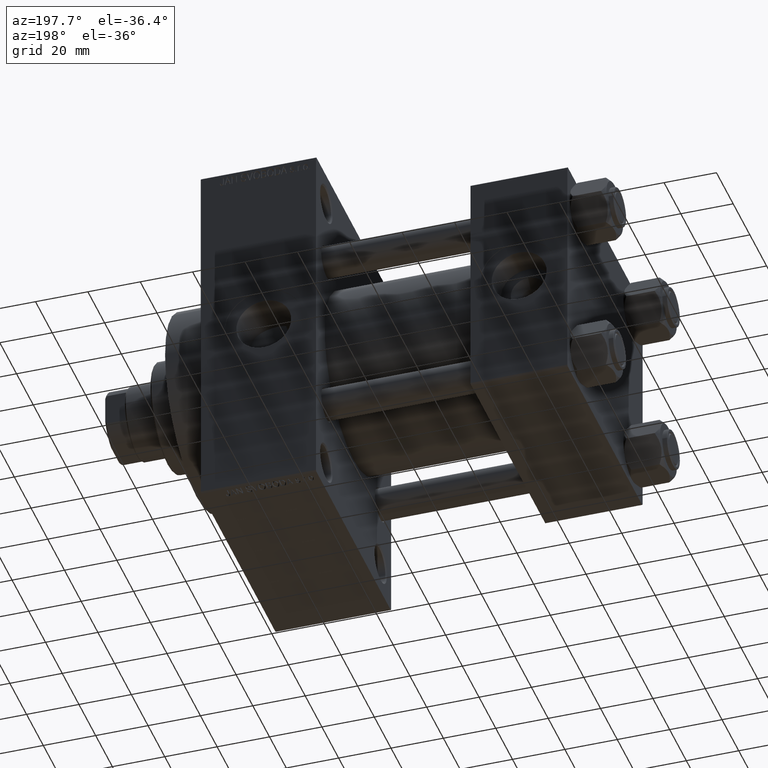
[diagram: clean part render]
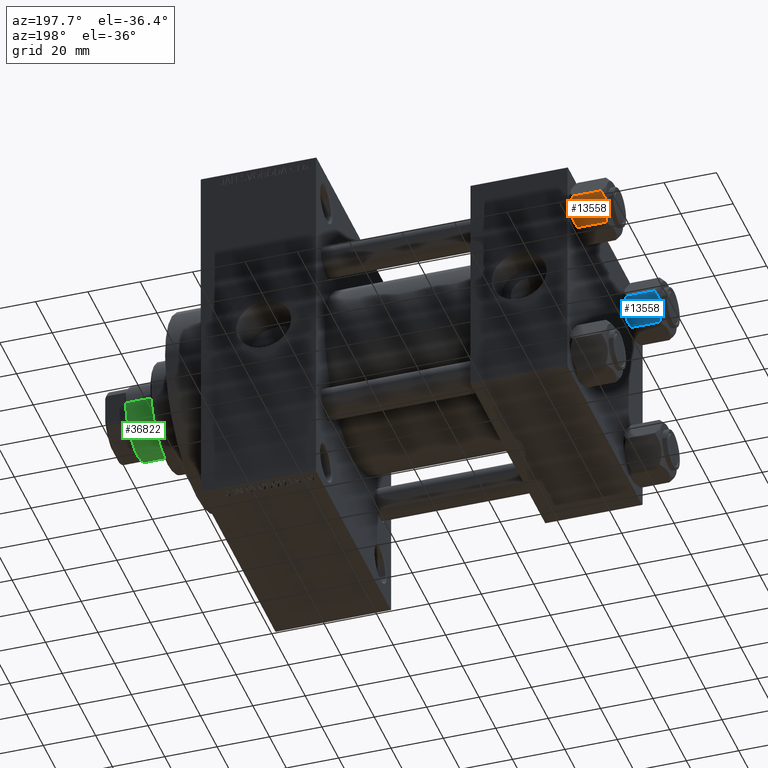
[diagram: same view with three faces highlighted in distinct colors, each labeled with its STEP entity id]
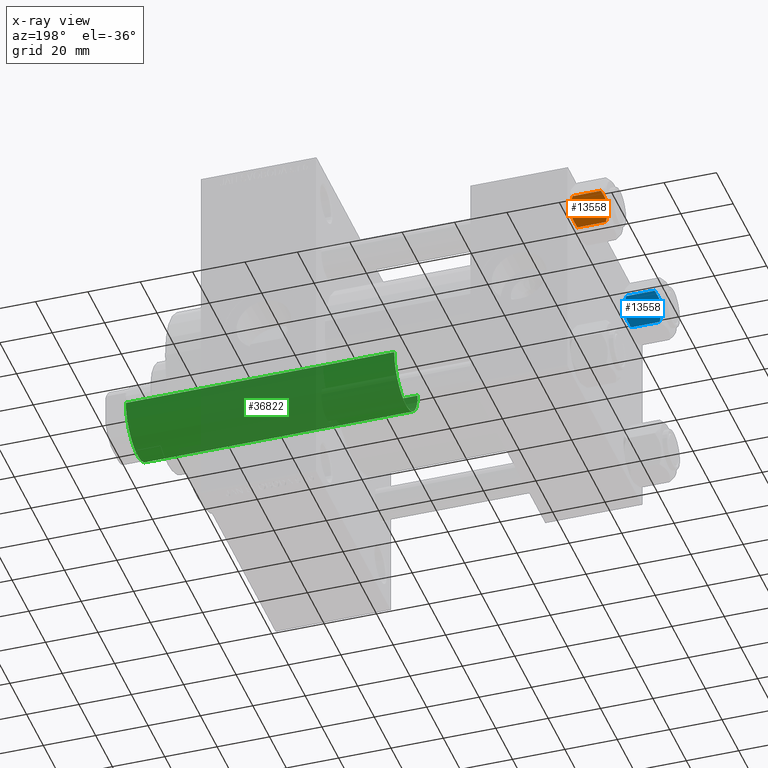
[diagram: x-ray of the same camera — body ghosted, the three highlighted faces saturated]
A machine part, auxiliary view with three faces highlighted in distinct colors.
The next image is the same camera in x-ray (body ghosted, the three faces saturated) — at least one of them is partly hidden behind the body in this view.
Their STEP definitions:

[orange] entity #13558 — the highlighted planar face has unit normal (-0, -0.866, 0.5).
#719 = CARTESIAN_POINT ( 'NONE',  ( 11.16498164529022574, 0.7881149087337292469, -12.89823354668504862 ) ) ;
#954 = EDGE_CURVE ( 'NONE', #45559, #23293, #44878, .T. ) ;
#1527 = CARTESIAN_POINT ( 'NONE',  ( 8.715000000000005187, 5.031607595987590109, -14.00000000000000000 ) ) ;
#2225 = VERTEX_POINT ( 'NONE', #3166 ) ;
#2510 = CARTESIAN_POINT ( 'NONE',  ( 5.810000000000000497, 10.06321519197518022, -12.44321519197518455 ) ) ;
#3166 = CARTESIAN_POINT ( 'NONE',  ( 11.62000000000000099, -1.924525737834042474E-15, -1.556784808024813893 ) ) ;
#4525 = VERTEX_POINT ( 'NONE', #25336 ) ;
#4587 = FACE_OUTER_BOUND ( 'NONE', #16738, .T. ) ;
#4829 = PLANE ( 'NONE',  #34046 ) ;
#4891 = ORIENTED_EDGE ( 'NONE', *, *, #45071, .F. ) ;
#5285 = CARTESIAN_POINT ( 'NONE',  ( 6.731401448974991375, 8.467301068182917945, -13.28585617404753627 ) ) ;
#5798 = DIRECTION ( 'NONE',  ( 0.4999999999999998335, -0.8660254037844387076, 0.000000000000000000 ) ) ;
#6338 = ORIENTED_EDGE ( 'NONE', *, *, #27843, .T. ) ;
#6592 = CARTESIAN_POINT ( 'NONE',  ( 10.69859855102501278, 1.595914123792262718, -0.7141438259524649501 ) ) ;
#8390 = EDGE_CURVE ( 'NONE', #41371, #4525, #48030, .T. ) ;
#8392 = CARTESIAN_POINT ( 'NONE',  ( 5.810000000000000497, 10.06321519197518022, -1.556784808024815892 ) ) ;
#8455 = CARTESIAN_POINT ( 'NONE',  ( 10.69662495661650503, 1.599332489581333672, -13.28854452935655139 ) ) ;
#8686 = ORIENTED_EDGE ( 'NONE', *, *, #8390, .F. ) ;
#9028 = CARTESIAN_POINT ( 'NONE',  ( 7.455303369716807182, 7.213466161761384221, -13.69973261901325934 ) ) ;
#9805 = VERTEX_POINT ( 'NONE', #43856 ) ;
#9998 = CARTESIAN_POINT ( 'NONE',  ( 6.265545725125286403, 9.274186850887383926, -12.89876091710046957 ) ) ;
#10338 = CARTESIAN_POINT ( 'NONE',  ( 11.16445427487472131, 0.7890283410877956261, -1.101239082899531985 ) ) ;
#10957 = CARTESIAN_POINT ( 'NONE',  ( 6.733375043383499126, 8.463882702393844326, -0.7114554706434494946 ) ) ;
#12513 = ORIENTED_EDGE ( 'NONE', *, *, #954, .F. ) ;
#13360 = CARTESIAN_POINT ( 'NONE',  ( 11.62000000000000099, -1.924525737834042474E-15, -1.556784808024813893 ) ) ;
#13558 = ADVANCED_FACE ( 'NONE', ( #4587 ), #4829, .F. ) ;
#13613 = LINE ( 'NONE', #39657, #30096 ) ;
#16216 = CARTESIAN_POINT ( 'NONE',  ( 8.715000000000005187, 5.031607595987590109, -14.00000000000000000 ) ) ;
#16362 = EDGE_CURVE ( 'NONE', #9805, #41371, #29502, .T. ) ;
#16738 = EDGE_LOOP ( 'NONE', ( #17657, #6338, #12513, #42905, #4891, #8686 ) ) ;
#17279 = CARTESIAN_POINT ( 'NONE',  ( 8.202333004087901003, 5.919572880271053883, -13.96005881939309567 ) ) ;
#17657 = ORIENTED_EDGE ( 'NONE', *, *, #16362, .F. ) ;
#17764 = LINE ( 'NONE', #36270, #34850 ) ;
#18104 = CARTESIAN_POINT ( 'NONE',  ( 8.715000000000005187, 5.031607595987590109, 0.000000000000000000 ) ) ;
#19717 = CARTESIAN_POINT ( 'NONE',  ( 9.220295946303432189, 4.156409344131451356, -14.00000000000000178 ) ) ;
#20080 = DIRECTION ( 'NONE',  ( -0.8660254037844387076, -0.4999999999999998335, 0.000000000000000000 ) ) ;
#21252 = CARTESIAN_POINT ( 'NONE',  ( 7.700834831386345058, 6.788193195293094284, -13.80960203119265906 ) ) ;
#21828 = CARTESIAN_POINT ( 'NONE',  ( 9.227666995912102266, 4.143642311704121894, -0.03994118060690670519 ) ) ;
#23293 = VERTEX_POINT ( 'NONE', #8392 ) ;
#25336 = CARTESIAN_POINT ( 'NONE',  ( 11.62000000000000099, -1.689012838886770227E-15, -12.44321519197518633 ) ) ;
#25714 = EDGE_CURVE ( 'NONE', #2225, #45559, #33725, .T. ) ;
#26193 = CARTESIAN_POINT ( 'NONE',  ( 6.265018354709773973, 9.275100283241448196, -1.101766453314953154 ) ) ;
#27199 = CARTESIAN_POINT ( 'NONE',  ( 11.62000000000000099, -1.689012838886770227E-15, -12.44321519197518633 ) ) ;
#27843 = EDGE_CURVE ( 'NONE', #9805, #23293, #13613, .T. ) ;
#28593 = CARTESIAN_POINT ( 'NONE',  ( 9.974696630283190757, 2.849749030213792000, -0.3002673809867367205 ) ) ;
#29502 = B_SPLINE_CURVE_WITH_KNOTS ( 'NONE', 3,
 ( #2510, #9998, #5285, #9028, #21252, #17279, #48037, #1527 ),
 .UNSPECIFIED., .F., .F.,
 ( 4, 2, 2, 4 ),
 ( 2.544312114902182352E-07, 0.003011550106433542526, 0.004517197944044567919, 0.006022845781655592444 ),
 .UNSPECIFIED. ) ;
#29693 = CARTESIAN_POINT ( 'NONE',  ( 8.715000000000005187, 5.031607595987590109, 0.000000000000000000 ) ) ;
#29935 = CARTESIAN_POINT ( 'NONE',  ( 8.209704053696576409, 5.906805847843727086, 3.430483436379916373E-15 ) ) ;
#30096 = VECTOR ( 'NONE', #43894, 1000.000000000000000 ) ;
#33443 = CARTESIAN_POINT ( 'NONE',  ( 8.715000000000005187, 5.031607595987590109, 0.000000000000000000 ) ) ;
#33725 = B_SPLINE_CURVE_WITH_KNOTS ( 'NONE', 3,
 ( #13360, #10338, #6592, #28593, #39882, #21828, #43876, #18104 ),
 .UNSPECIFIED., .F., .F.,
 ( 4, 2, 2, 4 ),
 ( 2.544312114903581015E-07, 0.003011550106433540791, 0.004517197944044564449, 0.006022845781655588107 ),
 .UNSPECIFIED. ) ;
#34046 = AXIS2_PLACEMENT_3D ( 'NONE', #43338, #20080, #5798 ) ;
#34850 = VECTOR ( 'NONE', #40041, 1000.000000000000000 ) ;
#36270 = CARTESIAN_POINT ( 'NONE',  ( 11.62000000000000099, -1.813166800014576593E-15, -14.00000000000000000 ) ) ;
#38974 = CARTESIAN_POINT ( 'NONE',  ( 9.716999946243698005, 3.296092779912226156, -13.84547602999602134 ) ) ;
#39657 = CARTESIAN_POINT ( 'NONE',  ( 5.810000000000000497, 10.06321519197518022, -14.00000000000000000 ) ) ;
#39882 = CARTESIAN_POINT ( 'NONE',  ( 9.729165168613654657, 3.275021996682081493, -0.1903979688073405840 ) ) ;
#40041 = DIRECTION ( 'NONE',  ( -0.000000000000000000, -0.000000000000000000, 1.000000000000000000 ) ) ;
#40757 = CARTESIAN_POINT ( 'NONE',  ( 8.715000000000005187, 5.031607595987590109, -14.00000000000000000 ) ) ;
#41371 = VERTEX_POINT ( 'NONE', #40757 ) ;
#42460 = CARTESIAN_POINT ( 'NONE',  ( 5.810000000000000497, 10.06321519197518022, -1.556784808024815892 ) ) ;
#42905 = ORIENTED_EDGE ( 'NONE', *, *, #25714, .F. ) ;
#43338 = CARTESIAN_POINT ( 'NONE',  ( 5.810000000000000497, 10.06321519197518022, -14.00000000000000000 ) ) ;
#43856 = CARTESIAN_POINT ( 'NONE',  ( 5.810000000000000497, 10.06321519197518022, -12.44321519197518455 ) ) ;
#43876 = CARTESIAN_POINT ( 'NONE',  ( 8.969430103550381617, 4.590921729663312689, 3.523657060577888622E-15 ) ) ;
#43894 = DIRECTION ( 'NONE',  ( -0.000000000000000000, -0.000000000000000000, 1.000000000000000000 ) ) ;
#44878 = B_SPLINE_CURVE_WITH_KNOTS ( 'NONE', 3,
 ( #29693, #29935, #45241, #10957, #26193, #42460 ),
 .UNSPECIFIED., .F., .F.,
 ( 4, 2, 4 ),
 ( 0.006022845781655588107, 0.009013049135303636758, 0.01200325248895168367 ),
 .UNSPECIFIED. ) ;
#45071 = EDGE_CURVE ( 'NONE', #4525, #2225, #17764, .T. ) ;
#45241 = CARTESIAN_POINT ( 'NONE',  ( 7.713000053756307928, 6.767122412062951398, -0.1545239700039825748 ) ) ;
#45559 = VERTEX_POINT ( 'NONE', #33443 ) ;
#48030 = B_SPLINE_CURVE_WITH_KNOTS ( 'NONE', 3,
 ( #16216, #19717, #38974, #8455, #719, #27199 ),
 .UNSPECIFIED., .F., .F.,
 ( 4, 2, 4 ),
 ( 0.006022845781655592444, 0.009013049135303636758, 0.01200325248895168194 ),
 .UNSPECIFIED. ) ;
#48037 = CARTESIAN_POINT ( 'NONE',  ( 8.460569896449618099, 5.472293462311861312, -14.00000000000000000 ) ) ;

[blue] entity #13558 — the highlighted planar face has unit normal (-0, -0.866, 0.5).
#719 = CARTESIAN_POINT ( 'NONE',  ( 11.16498164529022574, 0.7881149087337292469, -12.89823354668504862 ) ) ;
#954 = EDGE_CURVE ( 'NONE', #45559, #23293, #44878, .T. ) ;
#1527 = CARTESIAN_POINT ( 'NONE',  ( 8.715000000000005187, 5.031607595987590109, -14.00000000000000000 ) ) ;
#2225 = VERTEX_POINT ( 'NONE', #3166 ) ;
#2510 = CARTESIAN_POINT ( 'NONE',  ( 5.810000000000000497, 10.06321519197518022, -12.44321519197518455 ) ) ;
#3166 = CARTESIAN_POINT ( 'NONE',  ( 11.62000000000000099, -1.924525737834042474E-15, -1.556784808024813893 ) ) ;
#4525 = VERTEX_POINT ( 'NONE', #25336 ) ;
#4587 = FACE_OUTER_BOUND ( 'NONE', #16738, .T. ) ;
#4829 = PLANE ( 'NONE',  #34046 ) ;
#4891 = ORIENTED_EDGE ( 'NONE', *, *, #45071, .F. ) ;
#5285 = CARTESIAN_POINT ( 'NONE',  ( 6.731401448974991375, 8.467301068182917945, -13.28585617404753627 ) ) ;
#5798 = DIRECTION ( 'NONE',  ( 0.4999999999999998335, -0.8660254037844387076, 0.000000000000000000 ) ) ;
#6338 = ORIENTED_EDGE ( 'NONE', *, *, #27843, .T. ) ;
#6592 = CARTESIAN_POINT ( 'NONE',  ( 10.69859855102501278, 1.595914123792262718, -0.7141438259524649501 ) ) ;
#8390 = EDGE_CURVE ( 'NONE', #41371, #4525, #48030, .T. ) ;
#8392 = CARTESIAN_POINT ( 'NONE',  ( 5.810000000000000497, 10.06321519197518022, -1.556784808024815892 ) ) ;
#8455 = CARTESIAN_POINT ( 'NONE',  ( 10.69662495661650503, 1.599332489581333672, -13.28854452935655139 ) ) ;
#8686 = ORIENTED_EDGE ( 'NONE', *, *, #8390, .F. ) ;
#9028 = CARTESIAN_POINT ( 'NONE',  ( 7.455303369716807182, 7.213466161761384221, -13.69973261901325934 ) ) ;
#9805 = VERTEX_POINT ( 'NONE', #43856 ) ;
#9998 = CARTESIAN_POINT ( 'NONE',  ( 6.265545725125286403, 9.274186850887383926, -12.89876091710046957 ) ) ;
#10338 = CARTESIAN_POINT ( 'NONE',  ( 11.16445427487472131, 0.7890283410877956261, -1.101239082899531985 ) ) ;
#10957 = CARTESIAN_POINT ( 'NONE',  ( 6.733375043383499126, 8.463882702393844326, -0.7114554706434494946 ) ) ;
#12513 = ORIENTED_EDGE ( 'NONE', *, *, #954, .F. ) ;
#13360 = CARTESIAN_POINT ( 'NONE',  ( 11.62000000000000099, -1.924525737834042474E-15, -1.556784808024813893 ) ) ;
#13558 = ADVANCED_FACE ( 'NONE', ( #4587 ), #4829, .F. ) ;
#13613 = LINE ( 'NONE', #39657, #30096 ) ;
#16216 = CARTESIAN_POINT ( 'NONE',  ( 8.715000000000005187, 5.031607595987590109, -14.00000000000000000 ) ) ;
#16362 = EDGE_CURVE ( 'NONE', #9805, #41371, #29502, .T. ) ;
#16738 = EDGE_LOOP ( 'NONE', ( #17657, #6338, #12513, #42905, #4891, #8686 ) ) ;
#17279 = CARTESIAN_POINT ( 'NONE',  ( 8.202333004087901003, 5.919572880271053883, -13.96005881939309567 ) ) ;
#17657 = ORIENTED_EDGE ( 'NONE', *, *, #16362, .F. ) ;
#17764 = LINE ( 'NONE', #36270, #34850 ) ;
#18104 = CARTESIAN_POINT ( 'NONE',  ( 8.715000000000005187, 5.031607595987590109, 0.000000000000000000 ) ) ;
#19717 = CARTESIAN_POINT ( 'NONE',  ( 9.220295946303432189, 4.156409344131451356, -14.00000000000000178 ) ) ;
#20080 = DIRECTION ( 'NONE',  ( -0.8660254037844387076, -0.4999999999999998335, 0.000000000000000000 ) ) ;
#21252 = CARTESIAN_POINT ( 'NONE',  ( 7.700834831386345058, 6.788193195293094284, -13.80960203119265906 ) ) ;
#21828 = CARTESIAN_POINT ( 'NONE',  ( 9.227666995912102266, 4.143642311704121894, -0.03994118060690670519 ) ) ;
#23293 = VERTEX_POINT ( 'NONE', #8392 ) ;
#25336 = CARTESIAN_POINT ( 'NONE',  ( 11.62000000000000099, -1.689012838886770227E-15, -12.44321519197518633 ) ) ;
#25714 = EDGE_CURVE ( 'NONE', #2225, #45559, #33725, .T. ) ;
#26193 = CARTESIAN_POINT ( 'NONE',  ( 6.265018354709773973, 9.275100283241448196, -1.101766453314953154 ) ) ;
#27199 = CARTESIAN_POINT ( 'NONE',  ( 11.62000000000000099, -1.689012838886770227E-15, -12.44321519197518633 ) ) ;
#27843 = EDGE_CURVE ( 'NONE', #9805, #23293, #13613, .T. ) ;
#28593 = CARTESIAN_POINT ( 'NONE',  ( 9.974696630283190757, 2.849749030213792000, -0.3002673809867367205 ) ) ;
#29502 = B_SPLINE_CURVE_WITH_KNOTS ( 'NONE', 3,
 ( #2510, #9998, #5285, #9028, #21252, #17279, #48037, #1527 ),
 .UNSPECIFIED., .F., .F.,
 ( 4, 2, 2, 4 ),
 ( 2.544312114902182352E-07, 0.003011550106433542526, 0.004517197944044567919, 0.006022845781655592444 ),
 .UNSPECIFIED. ) ;
#29693 = CARTESIAN_POINT ( 'NONE',  ( 8.715000000000005187, 5.031607595987590109, 0.000000000000000000 ) ) ;
#29935 = CARTESIAN_POINT ( 'NONE',  ( 8.209704053696576409, 5.906805847843727086, 3.430483436379916373E-15 ) ) ;
#30096 = VECTOR ( 'NONE', #43894, 1000.000000000000000 ) ;
#33443 = CARTESIAN_POINT ( 'NONE',  ( 8.715000000000005187, 5.031607595987590109, 0.000000000000000000 ) ) ;
#33725 = B_SPLINE_CURVE_WITH_KNOTS ( 'NONE', 3,
 ( #13360, #10338, #6592, #28593, #39882, #21828, #43876, #18104 ),
 .UNSPECIFIED., .F., .F.,
 ( 4, 2, 2, 4 ),
 ( 2.544312114903581015E-07, 0.003011550106433540791, 0.004517197944044564449, 0.006022845781655588107 ),
 .UNSPECIFIED. ) ;
#34046 = AXIS2_PLACEMENT_3D ( 'NONE', #43338, #20080, #5798 ) ;
#34850 = VECTOR ( 'NONE', #40041, 1000.000000000000000 ) ;
#36270 = CARTESIAN_POINT ( 'NONE',  ( 11.62000000000000099, -1.813166800014576593E-15, -14.00000000000000000 ) ) ;
#38974 = CARTESIAN_POINT ( 'NONE',  ( 9.716999946243698005, 3.296092779912226156, -13.84547602999602134 ) ) ;
#39657 = CARTESIAN_POINT ( 'NONE',  ( 5.810000000000000497, 10.06321519197518022, -14.00000000000000000 ) ) ;
#39882 = CARTESIAN_POINT ( 'NONE',  ( 9.729165168613654657, 3.275021996682081493, -0.1903979688073405840 ) ) ;
#40041 = DIRECTION ( 'NONE',  ( -0.000000000000000000, -0.000000000000000000, 1.000000000000000000 ) ) ;
#40757 = CARTESIAN_POINT ( 'NONE',  ( 8.715000000000005187, 5.031607595987590109, -14.00000000000000000 ) ) ;
#41371 = VERTEX_POINT ( 'NONE', #40757 ) ;
#42460 = CARTESIAN_POINT ( 'NONE',  ( 5.810000000000000497, 10.06321519197518022, -1.556784808024815892 ) ) ;
#42905 = ORIENTED_EDGE ( 'NONE', *, *, #25714, .F. ) ;
#43338 = CARTESIAN_POINT ( 'NONE',  ( 5.810000000000000497, 10.06321519197518022, -14.00000000000000000 ) ) ;
#43856 = CARTESIAN_POINT ( 'NONE',  ( 5.810000000000000497, 10.06321519197518022, -12.44321519197518455 ) ) ;
#43876 = CARTESIAN_POINT ( 'NONE',  ( 8.969430103550381617, 4.590921729663312689, 3.523657060577888622E-15 ) ) ;
#43894 = DIRECTION ( 'NONE',  ( -0.000000000000000000, -0.000000000000000000, 1.000000000000000000 ) ) ;
#44878 = B_SPLINE_CURVE_WITH_KNOTS ( 'NONE', 3,
 ( #29693, #29935, #45241, #10957, #26193, #42460 ),
 .UNSPECIFIED., .F., .F.,
 ( 4, 2, 4 ),
 ( 0.006022845781655588107, 0.009013049135303636758, 0.01200325248895168367 ),
 .UNSPECIFIED. ) ;
#45071 = EDGE_CURVE ( 'NONE', #4525, #2225, #17764, .T. ) ;
#45241 = CARTESIAN_POINT ( 'NONE',  ( 7.713000053756307928, 6.767122412062951398, -0.1545239700039825748 ) ) ;
#45559 = VERTEX_POINT ( 'NONE', #33443 ) ;
#48030 = B_SPLINE_CURVE_WITH_KNOTS ( 'NONE', 3,
 ( #16216, #19717, #38974, #8455, #719, #27199 ),
 .UNSPECIFIED., .F., .F.,
 ( 4, 2, 4 ),
 ( 0.006022845781655592444, 0.009013049135303636758, 0.01200325248895168194 ),
 .UNSPECIFIED. ) ;
#48037 = CARTESIAN_POINT ( 'NONE',  ( 8.460569896449618099, 5.472293462311861312, -14.00000000000000000 ) ) ;

[green] entity #36822 — the highlighted cylindrical surface (partial cylindrical patch) has radius 14 mm, axis along (-1, 0, 0).
#1847 = VERTEX_POINT ( 'NONE', #36477 ) ;
#3249 = CARTESIAN_POINT ( 'NONE',  ( -14.00000000000000178, 0.000000000000000000, 39.00000000000000000 ) ) ;
#4578 = LINE ( 'NONE', #12316, #18324 ) ;
#5532 = DIRECTION ( 'NONE',  ( -1.000000000000000000, 0.000000000000000000, 0.000000000000000000 ) ) ;
#6443 = DIRECTION ( 'NONE',  ( -0.000000000000000000, -0.000000000000000000, -1.000000000000000000 ) ) ;
#7709 = DIRECTION ( 'NONE',  ( 1.000000000000000000, 0.000000000000000000, 0.000000000000000000 ) ) ;
#10331 = ORIENTED_EDGE ( 'NONE', *, *, #32618, .F. ) ;
#10576 = LINE ( 'NONE', #44862, #15122 ) ;
#12316 = CARTESIAN_POINT ( 'NONE',  ( 14.00000000000000178, 1.714505518806294835E-15, 142.0000000000000000 ) ) ;
#12925 = AXIS2_PLACEMENT_3D ( 'NONE', #31890, #31391, #16908 ) ;
#13246 = CARTESIAN_POINT ( 'NONE',  ( 14.00000000000000178, 1.714505518806294835E-15, 39.00000000000000000 ) ) ;
#13935 = CARTESIAN_POINT ( 'NONE',  ( 0.000000000000000000, 0.000000000000000000, 142.0000000000000000 ) ) ;
#15122 = VECTOR ( 'NONE', #16005, 1000.000000000000000 ) ;
#16005 = DIRECTION ( 'NONE',  ( -0.000000000000000000, -0.000000000000000000, -1.000000000000000000 ) ) ;
#16049 = AXIS2_PLACEMENT_3D ( 'NONE', #13935, #6443, #5532 ) ;
#16793 = FACE_OUTER_BOUND ( 'NONE', #19375, .T. ) ;
#16908 = DIRECTION ( 'NONE',  ( 1.000000000000000000, 0.000000000000000000, 0.000000000000000000 ) ) ;
#16949 = VERTEX_POINT ( 'NONE', #31828 ) ;
#17178 = ORIENTED_EDGE ( 'NONE', *, *, #33708, .T. ) ;
#17609 = CIRCLE ( 'NONE', #43952, 14.00000000000000178 ) ;
#18324 = VECTOR ( 'NONE', #42838, 1000.000000000000000 ) ;
#19375 = EDGE_LOOP ( 'NONE', ( #28554, #17178, #24818, #10331 ) ) ;
#24521 = CYLINDRICAL_SURFACE ( 'NONE', #16049, 14.00000000000000178 ) ;
#24818 = ORIENTED_EDGE ( 'NONE', *, *, #41917, .T. ) ;
#27233 = VERTEX_POINT ( 'NONE', #13246 ) ;
#28554 = ORIENTED_EDGE ( 'NONE', *, *, #36202, .T. ) ;
#30202 = DIRECTION ( 'NONE',  ( 0.000000000000000000, 0.000000000000000000, -1.000000000000000000 ) ) ;
#31391 = DIRECTION ( 'NONE',  ( 0.000000000000000000, 0.000000000000000000, 1.000000000000000000 ) ) ;
#31828 = CARTESIAN_POINT ( 'NONE',  ( -14.00000000000000178, 0.000000000000000000, 141.5000000000000000 ) ) ;
#31890 = CARTESIAN_POINT ( 'NONE',  ( 0.000000000000000000, 0.000000000000000000, 39.00000000000000000 ) ) ;
#32618 = EDGE_CURVE ( 'NONE', #16949, #41425, #10576, .T. ) ;
#33708 = EDGE_CURVE ( 'NONE', #1847, #27233, #4578, .T. ) ;
#34204 = CARTESIAN_POINT ( 'NONE',  ( 0.000000000000000000, 0.000000000000000000, 141.5000000000000000 ) ) ;
#36202 = EDGE_CURVE ( 'NONE', #16949, #1847, #17609, .T. ) ;
#36477 = CARTESIAN_POINT ( 'NONE',  ( 14.00000000000000178, 1.714505518806294835E-15, 141.5000000000000000 ) ) ;
#36822 = ADVANCED_FACE ( 'NONE', ( #16793 ), #24521, .T. ) ;
#41425 = VERTEX_POINT ( 'NONE', #3249 ) ;
#41917 = EDGE_CURVE ( 'NONE', #27233, #41425, #48866, .T. ) ;
#42838 = DIRECTION ( 'NONE',  ( -0.000000000000000000, -0.000000000000000000, -1.000000000000000000 ) ) ;
#43952 = AXIS2_PLACEMENT_3D ( 'NONE', #34204, #30202, #7709 ) ;
#44862 = CARTESIAN_POINT ( 'NONE',  ( -14.00000000000000178, 0.000000000000000000, 142.0000000000000000 ) ) ;
#48866 = CIRCLE ( 'NONE', #12925, 14.00000000000000178 ) ;